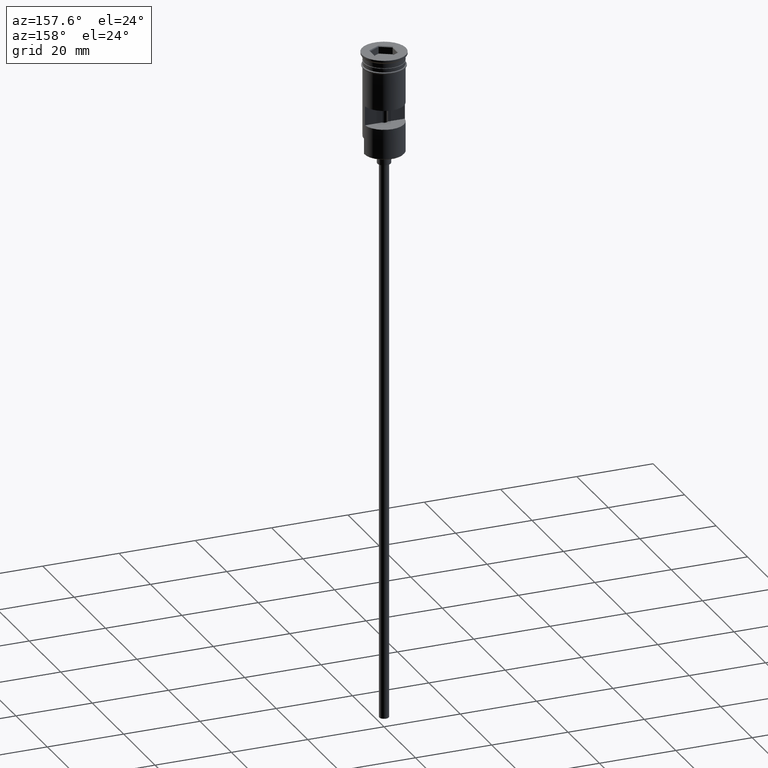
[diagram: clean part render]
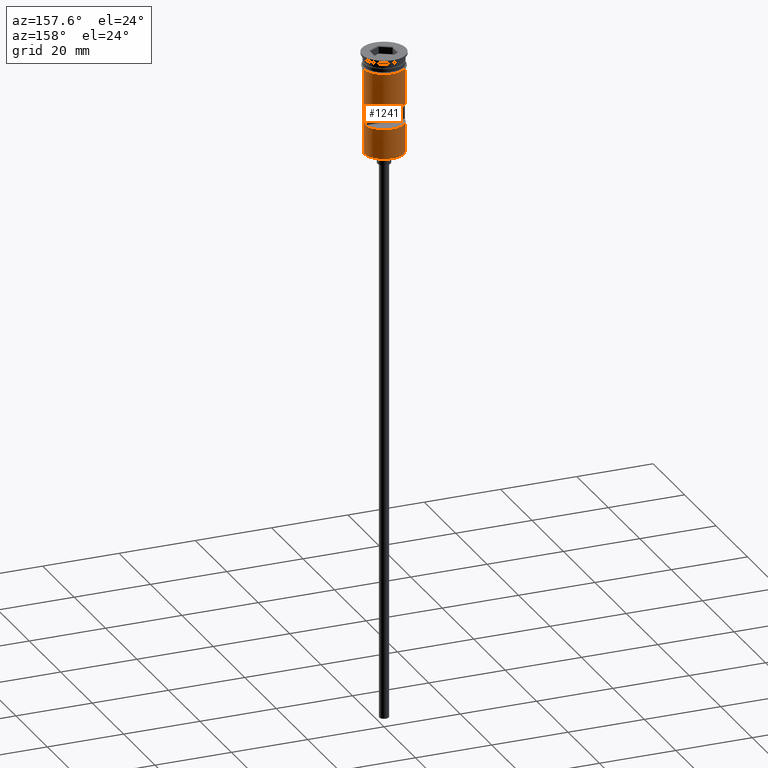
[diagram: same view with one face highlighted and labeled with its STEP entity id]
A machine part, auxiliary view. The second image highlights one B-rep face of the part: STEP entity #1241.
In plain terms, the highlighted cylindrical surface (edge-blend (fillet) strip) has radius 5.25 mm, axis along (-0, -0, 1).
Its self-contained STEP definition (entity closure, byte-faithful):
#5 = CARTESIAN_POINT ( 'NONE',  ( 5.249999999999994671, 6.429395695523597250E-16, -26.50000000000000000 ) ) ;
#16 = AXIS2_PLACEMENT_3D ( 'NONE', #947, #1067, #1087 ) ;
#19 = CARTESIAN_POINT ( 'NONE',  ( -5.249999999999999112, 6.429395695523603167E-16, -3.799999999999998934 ) ) ;
#47 = VECTOR ( 'NONE', #1036, 1000.000000000000000 ) ;
#50 = CARTESIAN_POINT ( 'NONE',  ( 5.249999999999994671, 6.429395695523597250E-16, -26.30000000000000071 ) ) ;
#60 = LINE ( 'NONE', #683, #1198 ) ;
#79 = VERTEX_POINT ( 'NONE', #19 ) ;
#82 = CARTESIAN_POINT ( 'NONE',  ( -5.215601595214110375, 0.5999999999999998668, -18.50000000000000355 ) ) ;
#97 = VECTOR ( 'NONE', #1481, 1000.000000000000000 ) ;
#113 = VERTEX_POINT ( 'NONE', #82 ) ;
#145 = ORIENTED_EDGE ( 'NONE', *, *, #1188, .F. ) ;
#154 = VECTOR ( 'NONE', #418, 1000.000000000000000 ) ;
#159 = EDGE_CURVE ( 'NONE', #1012, #1264, #60, .T. ) ;
#173 = CARTESIAN_POINT ( 'NONE',  ( -5.249999999999994671, 0.000000000000000000, -22.29999999999998295 ) ) ;
#212 = EDGE_CURVE ( 'NONE', #1377, #628, #563, .T. ) ;
#243 = ORIENTED_EDGE ( 'NONE', *, *, #1336, .F. ) ;
#258 = ORIENTED_EDGE ( 'NONE', *, *, #1062, .T. ) ;
#260 = CARTESIAN_POINT ( 'NONE',  ( 5.249999999999996447, 0.000000000000000000, 0.000000000000000000 ) ) ;
#286 = ORIENTED_EDGE ( 'NONE', *, *, #1071, .T. ) ;
#297 = LINE ( 'NONE', #5, #154 ) ;
#298 = VERTEX_POINT ( 'NONE', #1332 ) ;
#316 = EDGE_CURVE ( 'NONE', #298, #1012, #1279, .T. ) ;
#319 = DIRECTION ( 'NONE',  ( -1.000000000000000000, 0.000000000000000000, 0.000000000000000000 ) ) ;
#400 = DIRECTION ( 'NONE',  ( 0.000000000000000000, 0.000000000000000000, 1.000000000000000000 ) ) ;
#414 = CARTESIAN_POINT ( 'NONE',  ( 5.215601595214109487, 0.5999999999999998668, -13.49999999999999822 ) ) ;
#418 = DIRECTION ( 'NONE',  ( -0.000000000000000000, -0.000000000000000000, 1.000000000000000000 ) ) ;
#439 = EDGE_CURVE ( 'NONE', #1264, #113, #824, .T. ) ;
#484 = VERTEX_POINT ( 'NONE', #1367 ) ;
#486 = AXIS2_PLACEMENT_3D ( 'NONE', #1043, #653, #319 ) ;
#513 = VECTOR ( 'NONE', #590, 1000.000000000000000 ) ;
#514 = ORIENTED_EDGE ( 'NONE', *, *, #316, .F. ) ;
#555 = ORIENTED_EDGE ( 'NONE', *, *, #159, .F. ) ;
#563 = LINE ( 'NONE', #1432, #660 ) ;
#590 = DIRECTION ( 'NONE',  ( -0.000000000000000000, -0.000000000000000000, 1.000000000000000000 ) ) ;
#611 = CIRCLE ( 'NONE', #16, 5.249999999999999112 ) ;
#628 = VERTEX_POINT ( 'NONE', #173 ) ;
#640 = CIRCLE ( 'NONE', #486, 5.249999999999996447 ) ;
#653 = DIRECTION ( 'NONE',  ( 0.000000000000000000, 0.000000000000000000, 1.000000000000000000 ) ) ;
#660 = VECTOR ( 'NONE', #1426, 1000.000000000000000 ) ;
#683 = CARTESIAN_POINT ( 'NONE',  ( 5.215601595214110375, 0.5999999999999998668, 0.000000000000000000 ) ) ;
#724 = EDGE_CURVE ( 'NONE', #484, #79, #611, .T. ) ;
#761 = ORIENTED_EDGE ( 'NONE', *, *, #212, .T. ) ;
#795 = DIRECTION ( 'NONE',  ( 0.000000000000000000, 0.000000000000000000, -1.000000000000000000 ) ) ;
#804 = AXIS2_PLACEMENT_3D ( 'NONE', #954, #1447, #1303 ) ;
#821 = CYLINDRICAL_SURFACE ( 'NONE', #804, 5.249999999999996447 ) ;
#824 = CIRCLE ( 'NONE', #999, 5.249999999999996447 ) ;
#837 = CARTESIAN_POINT ( 'NONE',  ( 5.215601595214109487, 0.5999999999999998668, -18.50000000000000355 ) ) ;
#838 = CARTESIAN_POINT ( 'NONE',  ( 5.249999999999996447, 6.429395695523600208E-16, -22.29999999999998295 ) ) ;
#851 = VERTEX_POINT ( 'NONE', #838 ) ;
#864 = CARTESIAN_POINT ( 'NONE',  ( 0.000000000000000000, 0.000000000000000000, -13.49999999999999822 ) ) ;
#892 = EDGE_CURVE ( 'NONE', #851, #484, #1259, .T. ) ;
#944 = LINE ( 'NONE', #1214, #513 ) ;
#947 = CARTESIAN_POINT ( 'NONE',  ( 0.000000000000000000, 0.000000000000000000, -3.799999999999998934 ) ) ;
#954 = CARTESIAN_POINT ( 'NONE',  ( 0.000000000000000000, 0.000000000000000000, 0.000000000000000000 ) ) ;
#968 = FACE_BOUND ( 'NONE', #983, .T. ) ;
#983 = EDGE_LOOP ( 'NONE', ( #555, #514, #145, #1451 ) ) ;
#999 = AXIS2_PLACEMENT_3D ( 'NONE', #1483, #400, #1141 ) ;
#1012 = VERTEX_POINT ( 'NONE', #414 ) ;
#1016 = VERTEX_POINT ( 'NONE', #50 ) ;
#1024 = EDGE_LOOP ( 'NONE', ( #761, #258, #1364, #1317, #243, #286 ) ) ;
#1036 = DIRECTION ( 'NONE',  ( -0.000000000000000000, -0.000000000000000000, 1.000000000000000000 ) ) ;
#1043 = CARTESIAN_POINT ( 'NONE',  ( 0.000000000000000000, 0.000000000000000000, -26.30000000000000071 ) ) ;
#1062 = EDGE_CURVE ( 'NONE', #628, #79, #1556, .T. ) ;
#1067 = DIRECTION ( 'NONE',  ( -0.000000000000000000, -0.000000000000000000, 1.000000000000000000 ) ) ;
#1071 = EDGE_CURVE ( 'NONE', #1016, #1377, #640, .T. ) ;
#1087 = DIRECTION ( 'NONE',  ( 1.000000000000000000, 0.000000000000000000, 0.000000000000000000 ) ) ;
#1141 = DIRECTION ( 'NONE',  ( -1.000000000000000000, 0.000000000000000000, 0.000000000000000000 ) ) ;
#1150 = CARTESIAN_POINT ( 'NONE',  ( -5.249999999999996447, 6.429395695523600208E-16, 0.000000000000000000 ) ) ;
#1157 = CARTESIAN_POINT ( 'NONE',  ( -5.249999999999994671, 0.000000000000000000, -26.30000000000000071 ) ) ;
#1184 = FACE_OUTER_BOUND ( 'NONE', #1024, .T. ) ;
#1188 = EDGE_CURVE ( 'NONE', #113, #298, #944, .T. ) ;
#1198 = VECTOR ( 'NONE', #795, 1000.000000000000000 ) ;
#1214 = CARTESIAN_POINT ( 'NONE',  ( -5.215601595214110375, 0.5999999999999998668, 0.000000000000000000 ) ) ;
#1241 = ADVANCED_FACE ( 'NONE', ( #968, #1184 ), #821, .T. ) ;
#1259 = LINE ( 'NONE', #260, #97 ) ;
#1264 = VERTEX_POINT ( 'NONE', #837 ) ;
#1279 = CIRCLE ( 'NONE', #1594, 5.249999999999996447 ) ;
#1303 = DIRECTION ( 'NONE',  ( 1.000000000000000000, 0.000000000000000000, 0.000000000000000000 ) ) ;
#1317 = ORIENTED_EDGE ( 'NONE', *, *, #892, .F. ) ;
#1332 = CARTESIAN_POINT ( 'NONE',  ( -5.215601595214110375, 0.5999999999999998668, -13.49999999999999822 ) ) ;
#1336 = EDGE_CURVE ( 'NONE', #1016, #851, #297, .T. ) ;
#1364 = ORIENTED_EDGE ( 'NONE', *, *, #724, .F. ) ;
#1367 = CARTESIAN_POINT ( 'NONE',  ( 5.249999999999999112, 0.000000000000000000, -3.799999999999998934 ) ) ;
#1377 = VERTEX_POINT ( 'NONE', #1157 ) ;
#1426 = DIRECTION ( 'NONE',  ( -0.000000000000000000, -0.000000000000000000, 1.000000000000000000 ) ) ;
#1432 = CARTESIAN_POINT ( 'NONE',  ( -5.249999999999994671, 0.000000000000000000, -26.50000000000000000 ) ) ;
#1447 = DIRECTION ( 'NONE',  ( -0.000000000000000000, -0.000000000000000000, 1.000000000000000000 ) ) ;
#1451 = ORIENTED_EDGE ( 'NONE', *, *, #439, .F. ) ;
#1475 = DIRECTION ( 'NONE',  ( 0.000000000000000000, -1.000000000000000000, 3.304235192336777484E-16 ) ) ;
#1481 = DIRECTION ( 'NONE',  ( -0.000000000000000000, -0.000000000000000000, 1.000000000000000000 ) ) ;
#1483 = CARTESIAN_POINT ( 'NONE',  ( 0.000000000000000000, 0.000000000000000000, -18.50000000000000355 ) ) ;
#1556 = LINE ( 'NONE', #1150, #47 ) ;
#1582 = DIRECTION ( 'NONE',  ( -0.000000000000000000, -3.730588120380232914E-16, -1.000000000000000000 ) ) ;
#1594 = AXIS2_PLACEMENT_3D ( 'NONE', #864, #1582, #1475 ) ;